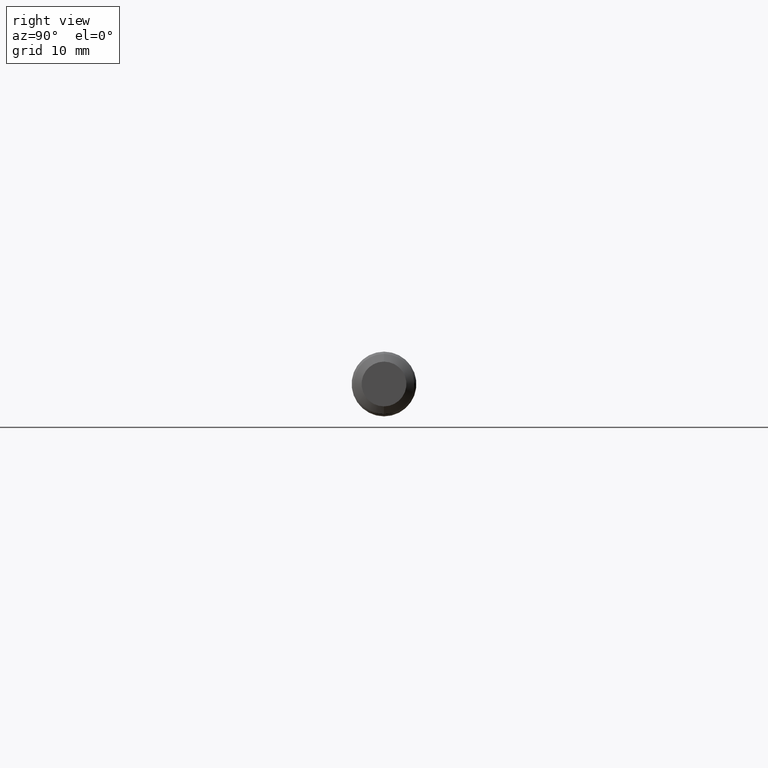
[diagram: clean part render]
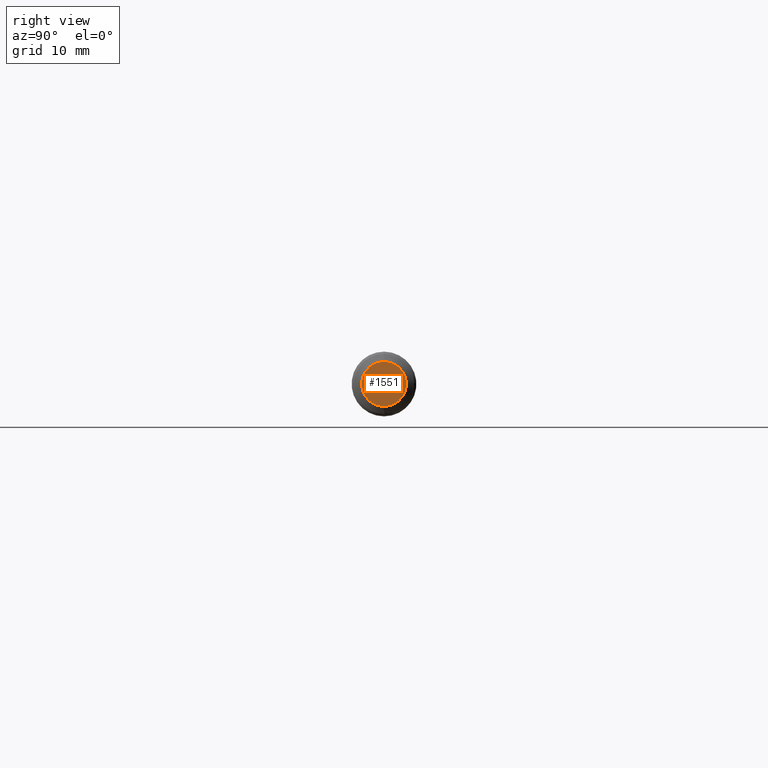
[diagram: same view with one face highlighted and labeled with its STEP entity id]
A machine part, right view. The second image highlights one B-rep face of the part: STEP entity #1551.
In plain terms, the highlighted planar face has unit normal (-1, 0, -0).
Its self-contained STEP definition (entity closure, byte-faithful):
#80 = PLANE ( 'NONE',  #2598 ) ;
#107 = FACE_OUTER_BOUND ( 'NONE', #384, .T. ) ;
#296 = DIRECTION ( 'NONE',  ( -0.000000000000000000, 0.000000000000000000, 1.000000000000000000 ) ) ;
#334 = EDGE_CURVE ( 'NONE', #1947, #1058, #2517, .T. ) ;
#384 = EDGE_LOOP ( 'NONE', ( #2769, #677 ) ) ;
#677 = ORIENTED_EDGE ( 'NONE', *, *, #334, .F. ) ;
#930 = DIRECTION ( 'NONE',  ( -1.000000000000000000, -0.000000000000000000, -0.000000000000000000 ) ) ;
#1058 = VERTEX_POINT ( 'NONE', #2487 ) ;
#1389 = EDGE_CURVE ( 'NONE', #1058, #1947, #1845, .T. ) ;
#1551 = ADVANCED_FACE ( 'NONE', ( #107 ), #80, .F. ) ;
#1598 = CARTESIAN_POINT ( 'NONE',  ( 3.500000000000000000, 0.000000000000000000, 0.000000000000000000 ) ) ;
#1718 = AXIS2_PLACEMENT_3D ( 'NONE', #1598, #2455, #1992 ) ;
#1810 = DIRECTION ( 'NONE',  ( 0.000000000000000000, 0.000000000000000000, 1.000000000000000000 ) ) ;
#1845 = CIRCLE ( 'NONE', #1718, 0.1079702837715738606 ) ;
#1862 = DIRECTION ( 'NONE',  ( -1.000000000000000000, 0.000000000000000000, -0.000000000000000000 ) ) ;
#1947 = VERTEX_POINT ( 'NONE', #2670 ) ;
#1992 = DIRECTION ( 'NONE',  ( 0.000000000000000000, 0.000000000000000000, 1.000000000000000000 ) ) ;
#2189 = CARTESIAN_POINT ( 'NONE',  ( 3.500000000000000000, 0.000000000000000000, 0.000000000000000000 ) ) ;
#2259 = CARTESIAN_POINT ( 'NONE',  ( 3.500000000000000000, 0.1454999999999999905, 0.000000000000000000 ) ) ;
#2455 = DIRECTION ( 'NONE',  ( -1.000000000000000000, -0.000000000000000000, -0.000000000000000000 ) ) ;
#2487 = CARTESIAN_POINT ( 'NONE',  ( 3.500000000000000000, 0.000000000000000000, 0.1079702837715738606 ) ) ;
#2517 = CIRCLE ( 'NONE', #2559, 0.1079702837715738606 ) ;
#2559 = AXIS2_PLACEMENT_3D ( 'NONE', #2189, #930, #1810 ) ;
#2598 = AXIS2_PLACEMENT_3D ( 'NONE', #2259, #1862, #296 ) ;
#2670 = CARTESIAN_POINT ( 'NONE',  ( 3.500000000000000000, 1.322254624238893410E-17, -0.1079702837715738606 ) ) ;
#2769 = ORIENTED_EDGE ( 'NONE', *, *, #1389, .F. ) ;